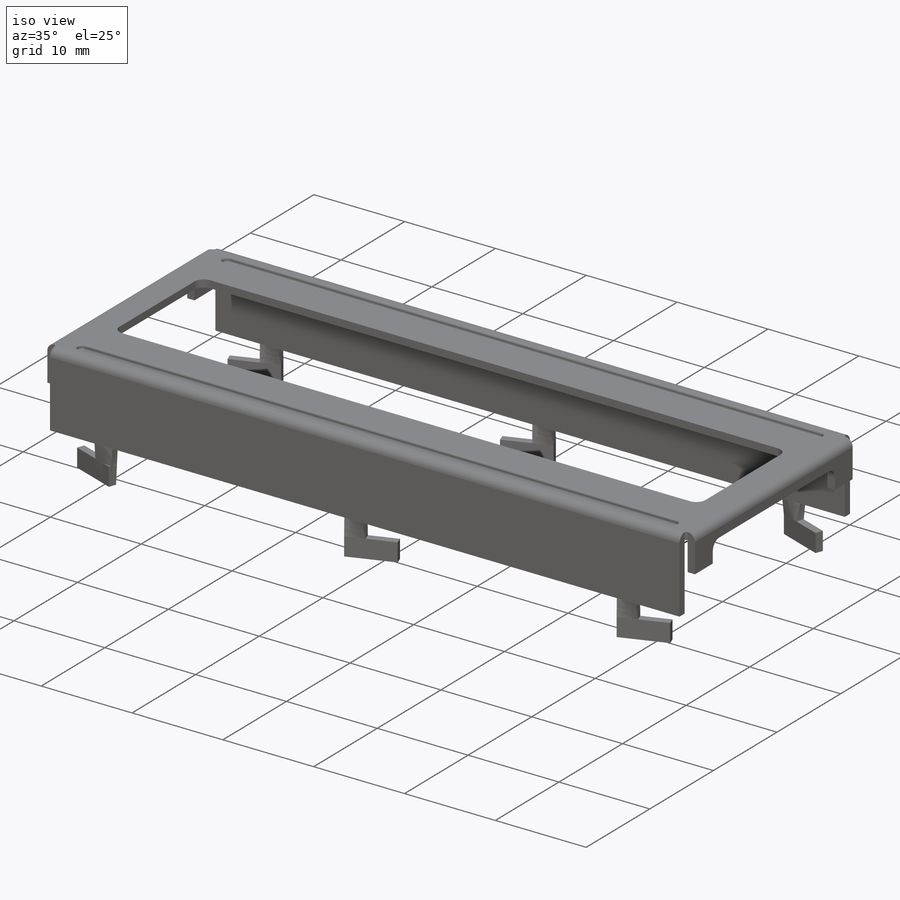
[diagram: iso view]
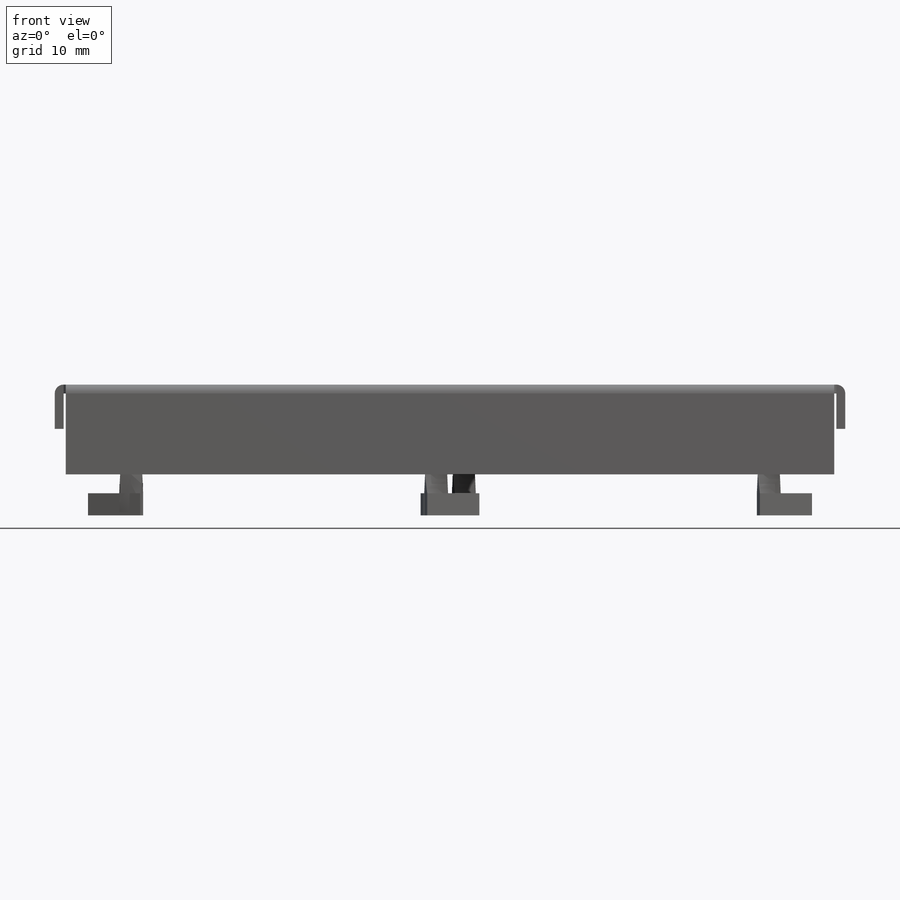
[diagram: front view]
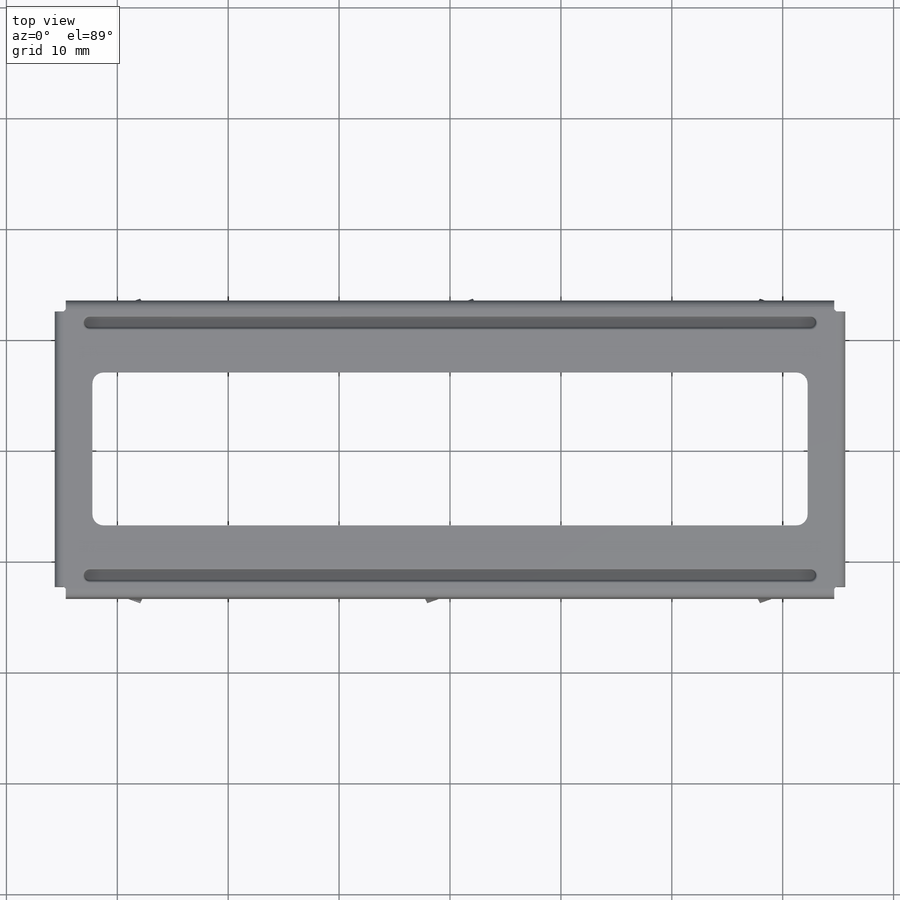
[diagram: top view]
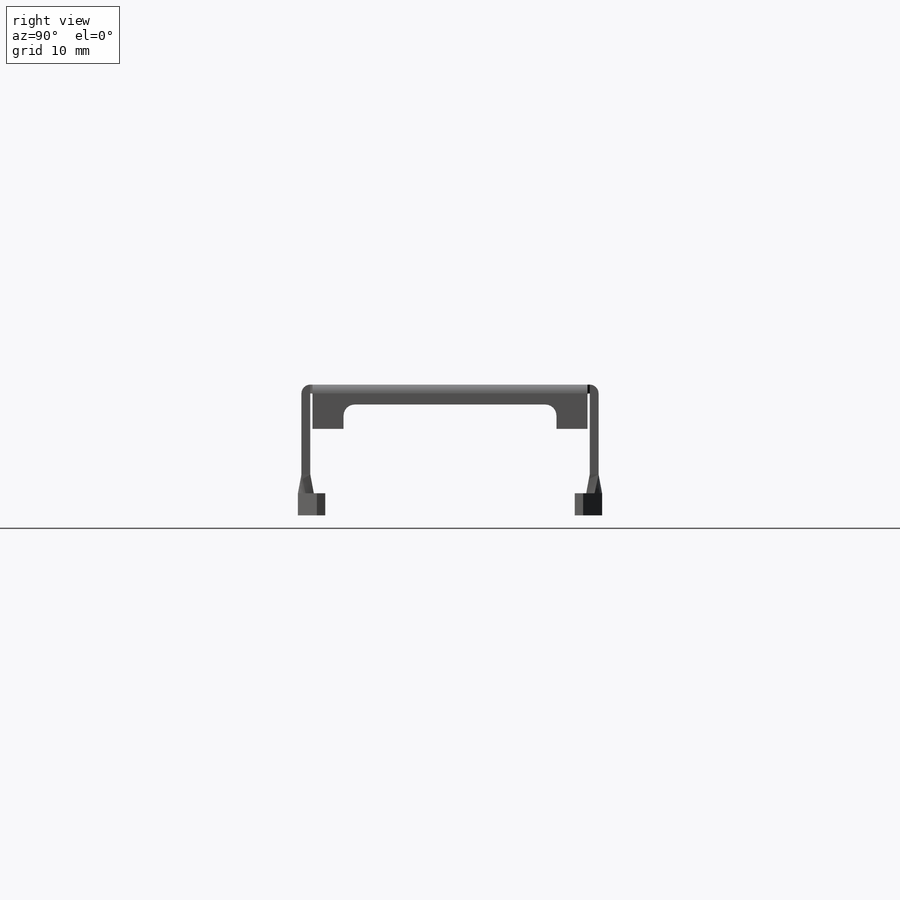
[diagram: right view]
SOLIDWORKS PART (.sldprt)
format: sldprt  version: not decoded by parser v0  size: 682,496 bytes
history: native  units: mm
features: sketch x22, extrude x7, fillet x4, plane x2, material x1, cut_extrude x1, sweep x1, mirror x1 (+11 scaffold rows collapsed)
feature tree (50):
  scaffold x11  (default folders/planes/origin — collapsed)
  material  "Material <not specified>"
  sketch  "Sketch1"  dims[D9=1.0mm D1=69.7mm D2=25.2mm D3=12.6mm D4=34.85mm D5=64.5mm D6=32.25mm D7=13.8mm D8=6.9mm]
  extrude  "Boss-Extrude1"  Depth=0.8mm
  sketch  "Sketch3"  dims[c1.D1=1.0mm c1.D2=65.0mm c1.D3=23.0mm c1.D4=11.4mm c2.D1=65.0mm c2.D2=1.0mm]
  cut_extrude  "Cut-Extrude1"  Depth=0.5mm
  sketch  "Sketch4"  dims[D1=1.8mm]
  extrude  "Boss-Extrude2"  Depth=0.5mm
  fillet  "Fillet1"  Radius=0.2mm
  fillet  "Fillet2"  Radius=0.2mm
  fillet  "Fillet3"  Radius=0.3mm
  sketch  "Sketch5"  dims[D1=0.5mm D2=0.4mm D3=0.1mm]
  sketch  "Sketch6"  dims[D1=0.9mm]
  sweep  "Cut-Sweep1"
  mirror  "Mirror1"
  sketch  "Sketch11"  dims[c1.D6=1.0mm c1.D1=4.0mm c1.D2=1.8mm c1.D3=24.8mm c1.D4=25.2mm c2.D4=90.0deg c3.D4=12.4mm c3.D5=2.8mm]
  extrude  "Boss-Extrude3"  Depth=0.8mm
  sketch  "Sketch12"  dims[D1=69.3mm D2=34.65mm D3=8.1mm]
  extrude  "Boss-Extrude4"  Depth=0.8mm
  sketch  "Sketch13"
  extrude  "Boss-Extrude5"  Depth=0.8mm
  sketch  "Sketch14"
  extrude  "Boss-Extrude6"  Depth=0.8mm
  fillet  "Fillet4"  Radius=0.8mm
  plane  "Plane3"  Offset=1.7mm
  plane  "Plane4"  Offset=1.7mm
  sketch  "Sketch16"  dims[D1=2.0mm D2=27.75mm D3=2.25mm D4=27.75mm D5=2.25mm]
  sketch  "Sketch17"  dims[c1.D1=2.0mm c1.D2=0.8mm c1.D3=~15.149908mm c2.D1=~0.937682mm c3.D1=5.0deg c3.D2=~0.959826mm c4.D2=170.0deg c4.D1=62.5mm c5.D1=~162.828526deg c6.D1=62.5mm c7.D1=~162.828526deg c8.D1=~112.187978mm c9.D1=20.0deg c9.D2=2.0mm c9.D3=0.8mm c9.D4=~8.910055mm c10.D4=20.0deg]
  sketch  "Sketch18"
  sketch  "Sketch19"
  sketch  "Sketch20"
  sketch  "Sketch21"
  sketch  "Sketch22"
  sketch  "Sketch23"
  sketch  "Sketch25"
  sketch  "Sketch26"
  sketch  "Sketch27"
  sketch  "Sketch28"
  sketch  "Sketch24"  dims[D1=5.0mm]
  extrude  "Boss-Extrude7"  Depth=2mm
decode coverage: 22 of 36 modeling features carry decoded parameters
note: ~ marks probable driven/reference dimensions
note: suppression state not decoded; provenance and decode notes live in map.json
